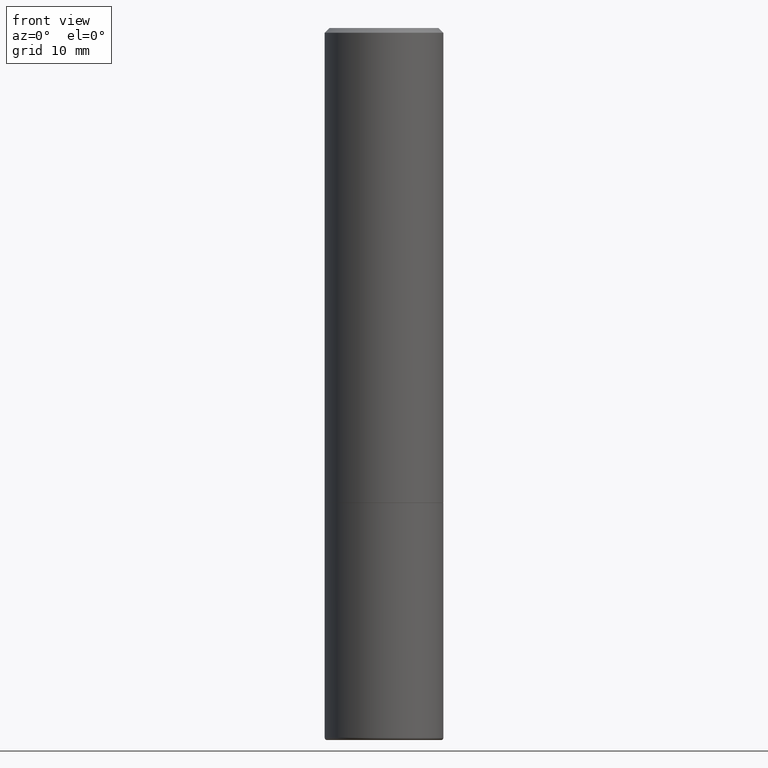
[diagram: clean part render]
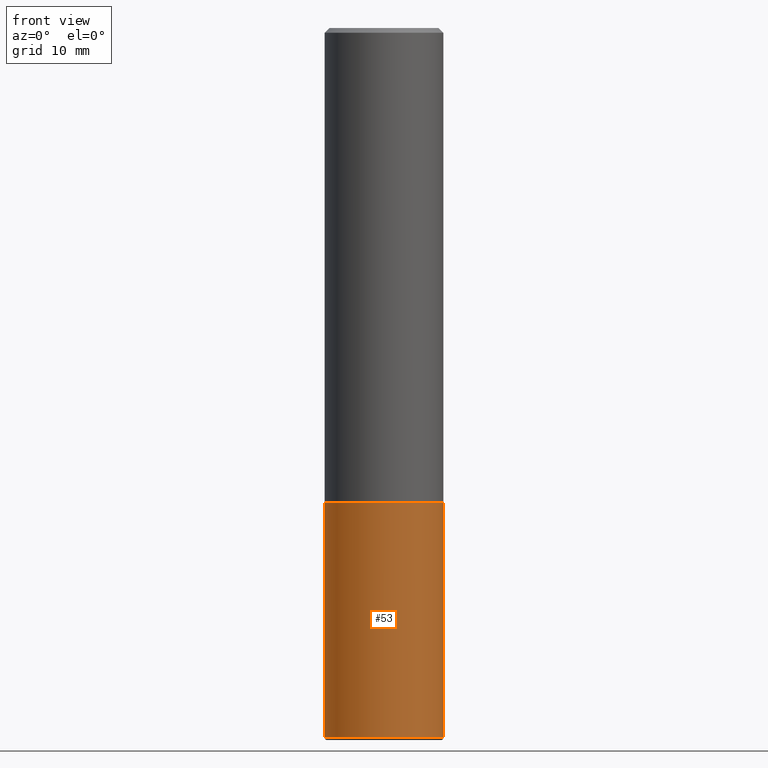
[diagram: same view with one face highlighted and labeled with its STEP entity id]
A machine part, front view. The second image highlights one B-rep face of the part: STEP entity #53.
In plain terms, the highlighted cylindrical surface (partial cylindrical patch) has radius 6.35 mm, axis along (-0, 0, 1).
Its self-contained STEP definition (entity closure, byte-faithful):
#2 = CARTESIAN_POINT ( 'NONE',  ( 0.000000000000000000, 0.000000000000000000, 0.000000000000000000 ) ) ;
#24 = DIRECTION ( 'NONE',  ( -2.445468806185136597E-29, 3.491481338843145583E-15, 1.000000000000000000 ) ) ;
#25 = VERTEX_POINT ( 'NONE', #194 ) ;
#32 = EDGE_CURVE ( 'NONE', #94, #155, #391, .T. ) ;
#53 = ADVANCED_FACE ( 'NONE', ( #164 ), #290, .T. ) ;
#56 = VERTEX_POINT ( 'NONE', #173 ) ;
#90 = CARTESIAN_POINT ( 'NONE',  ( -0.2500000000000000000, 1.776356839400250465E-15, -1.229733772563726445E-29 ) ) ;
#94 = VERTEX_POINT ( 'NONE', #334 ) ;
#101 = CARTESIAN_POINT ( 'NONE',  ( 0.2500000000000000000, -1.745740669421566678E-15, 1.219044193948983948E-29 ) ) ;
#125 = ORIENTED_EDGE ( 'NONE', *, *, #347, .T. ) ;
#131 = EDGE_LOOP ( 'NONE', ( #274, #125, #278, #378 ) ) ;
#146 = EDGE_CURVE ( 'NONE', #56, #155, #202, .T. ) ;
#155 = VERTEX_POINT ( 'NONE', #300 ) ;
#164 = FACE_OUTER_BOUND ( 'NONE', #131, .T. ) ;
#171 = DIRECTION ( 'NONE',  ( 1.000000000000000000, -6.982962677686266711E-15, 0.000000000000000000 ) ) ;
#173 = CARTESIAN_POINT ( 'NONE',  ( -0.2500000000000000000, -6.934889101013398653E-15, -2.000000000000000444 ) ) ;
#194 = CARTESIAN_POINT ( 'NONE',  ( -0.2499999999999998890, -8.663172363740755817E-15, -2.990000000000000213 ) ) ;
#202 = CIRCLE ( 'NONE', #307, 0.2500000000000000000 ) ;
#203 = VECTOR ( 'NONE', #279, 39.37007874015748143 ) ;
#217 = DIRECTION ( 'NONE',  ( 1.000000000000000000, -6.982962677686262766E-15, 0.000000000000000000 ) ) ;
#233 = AXIS2_PLACEMENT_3D ( 'NONE', #2, #257, #339 ) ;
#240 = CARTESIAN_POINT ( 'NONE',  ( 4.890937612370273754E-29, -6.982962677686291954E-15, -2.000000000000000444 ) ) ;
#257 = DIRECTION ( 'NONE',  ( -2.445468806185136597E-29, 3.491481338843145583E-15, 1.000000000000000000 ) ) ;
#274 = ORIENTED_EDGE ( 'NONE', *, *, #401, .F. ) ;
#278 = ORIENTED_EDGE ( 'NONE', *, *, #32, .T. ) ;
#279 = DIRECTION ( 'NONE',  ( -2.445468806185136877E-29, 3.491481338843145188E-15, 1.000000000000000000 ) ) ;
#289 = CIRCLE ( 'NONE', #332, 0.2500000000000000000 ) ;
#290 = CYLINDRICAL_SURFACE ( 'NONE', #233, 0.2500000000000000000 ) ;
#300 = CARTESIAN_POINT ( 'NONE',  ( 0.2500000000000000000, -8.728703347107858632E-15, -2.000000000000000444 ) ) ;
#304 = DIRECTION ( 'NONE',  ( -2.445468806185136597E-29, 3.491481338843145583E-15, 1.000000000000000000 ) ) ;
#307 = AXIS2_PLACEMENT_3D ( 'NONE', #240, #304, #171 ) ;
#332 = AXIS2_PLACEMENT_3D ( 'NONE', #379, #24, #217 ) ;
#334 = CARTESIAN_POINT ( 'NONE',  ( 0.2499999999999998890, -1.218526987256257138E-14, -2.990000000000000213 ) ) ;
#339 = DIRECTION ( 'NONE',  ( 1.000000000000000000, -6.982962677686266711E-15, 4.876176775795935793E-29 ) ) ;
#347 = EDGE_CURVE ( 'NONE', #25, #94, #289, .T. ) ;
#354 = DIRECTION ( 'NONE',  ( -2.445468806185136877E-29, 3.491481338843145188E-15, 1.000000000000000000 ) ) ;
#378 = ORIENTED_EDGE ( 'NONE', *, *, #146, .F. ) ;
#379 = CARTESIAN_POINT ( 'NONE',  ( 7.311951730493558245E-29, -1.043952920314100628E-14, -2.990000000000000213 ) ) ;
#391 = LINE ( 'NONE', #101, #398 ) ;
#398 = VECTOR ( 'NONE', #354, 39.37007874015748143 ) ;
#401 = EDGE_CURVE ( 'NONE', #25, #56, #414, .T. ) ;
#414 = LINE ( 'NONE', #90, #203 ) ;